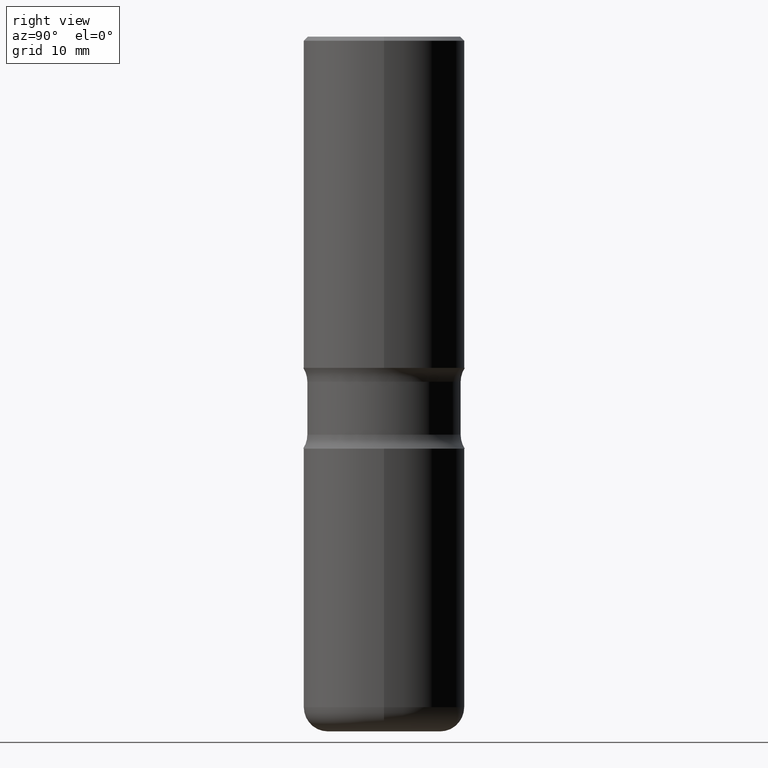
[diagram: clean part render]
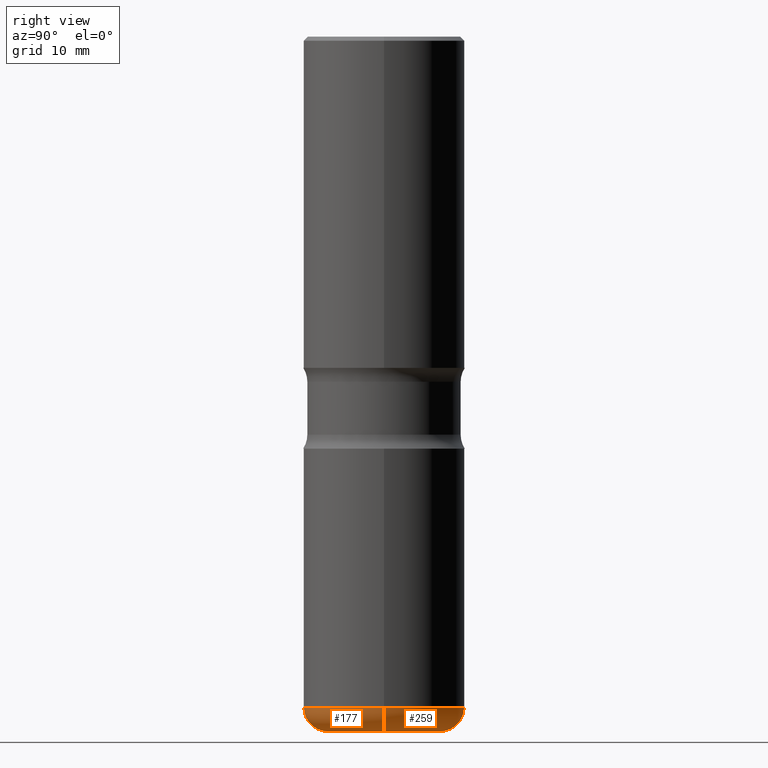
[diagram: same view with one multi-face feature highlighted, each face labeled with its STEP entity id]
A machine part, right view. The highlighted faces form ONE feature: a constant-radius fillet chain: 2 tangent blend faces with common blend radius 2.9997 mm. The faces share edges in the B-rep.
Their STEP definitions:
[1] entity #259 (Torus):
#9 = ORIENTED_EDGE ( 'NONE', *, *, #276, .T. ) ;
#28 = CIRCLE ( 'NONE', #490, 0.3937000000000004940 ) ;
#29 = AXIS2_PLACEMENT_3D ( 'NONE', #98, #262, #447 ) ;
#68 = EDGE_CURVE ( 'NONE', #89, #364, #28, .T. ) ;
#72 = VERTEX_POINT ( 'NONE', #499 ) ;
#86 = AXIS2_PLACEMENT_3D ( 'NONE', #100, #518, #263 ) ;
#89 = VERTEX_POINT ( 'NONE', #464 ) ;
#98 = CARTESIAN_POINT ( 'NONE',  ( 8.279868283981636714E-29, -1.182145751705512373E-14, -3.385800000000000143 ) ) ;
#100 = CARTESIAN_POINT ( 'NONE',  ( 7.991058417971171713E-29, -1.140911357093774644E-14, -3.267700000000000049 ) ) ;
#107 = DIRECTION ( 'NONE',  ( -6.982962677686266711E-15, -1.000000000000000000, 3.491481338843145583E-15 ) ) ;
#118 = EDGE_CURVE ( 'NONE', #72, #89, #384, .T. ) ;
#130 = AXIS2_PLACEMENT_3D ( 'NONE', #185, #107, #532 ) ;
#134 = CIRCLE ( 'NONE', #153, 0.1181000000000001077 ) ;
#147 = DIRECTION ( 'NONE',  ( 1.000000000000000000, -6.982962677686269866E-15, 0.000000000000000000 ) ) ;
#153 = AXIS2_PLACEMENT_3D ( 'NONE', #219, #397, #317 ) ;
#185 = CARTESIAN_POINT ( 'NONE',  ( 0.2756000000000004002, -1.333361808490808455E-14, -3.267700000000000049 ) ) ;
#189 = CARTESIAN_POINT ( 'NONE',  ( 7.991058417971169471E-29, -1.140911357093774486E-14, -3.267699999999999605 ) ) ;
#217 = EDGE_LOOP ( 'NONE', ( #555, #9, #396, #509 ) ) ;
#219 = CARTESIAN_POINT ( 'NONE',  ( -0.2756000000000004002, -9.450857791182906696E-15, -3.267700000000000049 ) ) ;
#259 = ADVANCED_FACE ( 'NONE', ( #486 ), #388, .T. ) ;
#262 = DIRECTION ( 'NONE',  ( -2.445468806185136597E-29, 3.491481338843145583E-15, 1.000000000000000000 ) ) ;
#263 = DIRECTION ( 'NONE',  ( 1.000000000000000000, -6.982962677686264344E-15, 4.883557194083112340E-29 ) ) ;
#276 = EDGE_CURVE ( 'NONE', #282, #364, #134, .T. ) ;
#282 = VERTEX_POINT ( 'NONE', #353 ) ;
#289 = EDGE_CURVE ( 'NONE', #72, #282, #299, .T. ) ;
#299 = CIRCLE ( 'NONE', #29, 0.2756000000000004002 ) ;
#317 = DIRECTION ( 'NONE',  ( -1.000000000000000000, 7.105427357600997914E-15, 0.000000000000000000 ) ) ;
#353 = CARTESIAN_POINT ( 'NONE',  ( -0.2756000000000004002, -9.237454278775255057E-15, -3.385800000000000143 ) ) ;
#364 = VERTEX_POINT ( 'NONE', #545 ) ;
#384 = CIRCLE ( 'NONE', #130, 0.1181000000000001077 ) ;
#388 = TOROIDAL_SURFACE ( 'NONE', #86, 0.2756000000000004002, 0.1181000000000000660 ) ;
#396 = ORIENTED_EDGE ( 'NONE', *, *, #68, .F. ) ;
#397 = DIRECTION ( 'NONE',  ( 7.105427357601001859E-15, 1.000000000000000000, -3.491481338843145583E-15 ) ) ;
#447 = DIRECTION ( 'NONE',  ( 1.000000000000000000, -6.982962677686270655E-15, 0.000000000000000000 ) ) ;
#464 = CARTESIAN_POINT ( 'NONE',  ( 0.3937000000000004940, -1.415830597714283123E-14, -3.267699999999999605 ) ) ;
#486 = FACE_OUTER_BOUND ( 'NONE', #217, .T. ) ;
#490 = AXIS2_PLACEMENT_3D ( 'NONE', #189, #536, #147 ) ;
#499 = CARTESIAN_POINT ( 'NONE',  ( 0.2756000000000004002, -1.374596203102546184E-14, -3.385800000000000143 ) ) ;
#509 = ORIENTED_EDGE ( 'NONE', *, *, #118, .F. ) ;
#518 = DIRECTION ( 'NONE',  ( -2.445468806185136597E-29, 3.491481338843145583E-15, 1.000000000000000000 ) ) ;
#532 = DIRECTION ( 'NONE',  ( 1.000000000000000000, -6.982962677686266711E-15, 0.000000000000000000 ) ) ;
#536 = DIRECTION ( 'NONE',  ( -2.445468806185136597E-29, 3.491481338843145583E-15, 1.000000000000000000 ) ) ;
#545 = CARTESIAN_POINT ( 'NONE',  ( -0.3937000000000004940, -8.611706820250227710E-15, -3.267699999999999605 ) ) ;
#555 = ORIENTED_EDGE ( 'NONE', *, *, #289, .T. ) ;
[2] entity #177 (Torus):
#11 = CIRCLE ( 'NONE', #240, 0.2756000000000004002 ) ;
#34 = DIRECTION ( 'NONE',  ( -2.445468806185136597E-29, 3.491481338843145583E-15, 1.000000000000000000 ) ) ;
#38 = CARTESIAN_POINT ( 'NONE',  ( 7.991058417971171713E-29, -1.140911357093774644E-14, -3.267700000000000049 ) ) ;
#40 = TOROIDAL_SURFACE ( 'NONE', #346, 0.2756000000000004002, 0.1181000000000000660 ) ;
#54 = ORIENTED_EDGE ( 'NONE', *, *, #118, .T. ) ;
#61 = DIRECTION ( 'NONE',  ( 1.000000000000000000, -6.982962677686270655E-15, 0.000000000000000000 ) ) ;
#72 = VERTEX_POINT ( 'NONE', #499 ) ;
#89 = VERTEX_POINT ( 'NONE', #464 ) ;
#94 = ORIENTED_EDGE ( 'NONE', *, *, #343, .F. ) ;
#104 = DIRECTION ( 'NONE',  ( -2.445468806185136597E-29, 3.491481338843145583E-15, 1.000000000000000000 ) ) ;
#107 = DIRECTION ( 'NONE',  ( -6.982962677686266711E-15, -1.000000000000000000, 3.491481338843145583E-15 ) ) ;
#118 = EDGE_CURVE ( 'NONE', #72, #89, #384, .T. ) ;
#130 = AXIS2_PLACEMENT_3D ( 'NONE', #185, #107, #532 ) ;
#134 = CIRCLE ( 'NONE', #153, 0.1181000000000001077 ) ;
#149 = DIRECTION ( 'NONE',  ( -2.445468806185136597E-29, 3.491481338843145583E-15, 1.000000000000000000 ) ) ;
#153 = AXIS2_PLACEMENT_3D ( 'NONE', #219, #397, #317 ) ;
#177 = ADVANCED_FACE ( 'NONE', ( #462 ), #40, .T. ) ;
#185 = CARTESIAN_POINT ( 'NONE',  ( 0.2756000000000004002, -1.333361808490808455E-14, -3.267700000000000049 ) ) ;
#213 = EDGE_CURVE ( 'NONE', #282, #72, #11, .T. ) ;
#219 = CARTESIAN_POINT ( 'NONE',  ( -0.2756000000000004002, -9.450857791182906696E-15, -3.267700000000000049 ) ) ;
#229 = EDGE_LOOP ( 'NONE', ( #303, #298, #54, #94 ) ) ;
#240 = AXIS2_PLACEMENT_3D ( 'NONE', #405, #104, #61 ) ;
#258 = AXIS2_PLACEMENT_3D ( 'NONE', #454, #149, #465 ) ;
#276 = EDGE_CURVE ( 'NONE', #282, #364, #134, .T. ) ;
#282 = VERTEX_POINT ( 'NONE', #353 ) ;
#298 = ORIENTED_EDGE ( 'NONE', *, *, #213, .T. ) ;
#303 = ORIENTED_EDGE ( 'NONE', *, *, #276, .F. ) ;
#317 = DIRECTION ( 'NONE',  ( -1.000000000000000000, 7.105427357600997914E-15, 0.000000000000000000 ) ) ;
#320 = CIRCLE ( 'NONE', #258, 0.3937000000000004940 ) ;
#343 = EDGE_CURVE ( 'NONE', #364, #89, #320, .T. ) ;
#346 = AXIS2_PLACEMENT_3D ( 'NONE', #38, #34, #438 ) ;
#353 = CARTESIAN_POINT ( 'NONE',  ( -0.2756000000000004002, -9.237454278775255057E-15, -3.385800000000000143 ) ) ;
#364 = VERTEX_POINT ( 'NONE', #545 ) ;
#384 = CIRCLE ( 'NONE', #130, 0.1181000000000001077 ) ;
#397 = DIRECTION ( 'NONE',  ( 7.105427357601001859E-15, 1.000000000000000000, -3.491481338843145583E-15 ) ) ;
#405 = CARTESIAN_POINT ( 'NONE',  ( 8.279868283981636714E-29, -1.182145751705512373E-14, -3.385800000000000143 ) ) ;
#438 = DIRECTION ( 'NONE',  ( 1.000000000000000000, -6.982962677686264344E-15, 4.883557194083112340E-29 ) ) ;
#454 = CARTESIAN_POINT ( 'NONE',  ( 7.991058417971169471E-29, -1.140911357093774486E-14, -3.267699999999999605 ) ) ;
#462 = FACE_OUTER_BOUND ( 'NONE', #229, .T. ) ;
#464 = CARTESIAN_POINT ( 'NONE',  ( 0.3937000000000004940, -1.415830597714283123E-14, -3.267699999999999605 ) ) ;
#465 = DIRECTION ( 'NONE',  ( 1.000000000000000000, -6.982962677686269866E-15, 0.000000000000000000 ) ) ;
#499 = CARTESIAN_POINT ( 'NONE',  ( 0.2756000000000004002, -1.374596203102546184E-14, -3.385800000000000143 ) ) ;
#532 = DIRECTION ( 'NONE',  ( 1.000000000000000000, -6.982962677686266711E-15, 0.000000000000000000 ) ) ;
#545 = CARTESIAN_POINT ( 'NONE',  ( -0.3937000000000004940, -8.611706820250227710E-15, -3.267699999999999605 ) ) ;